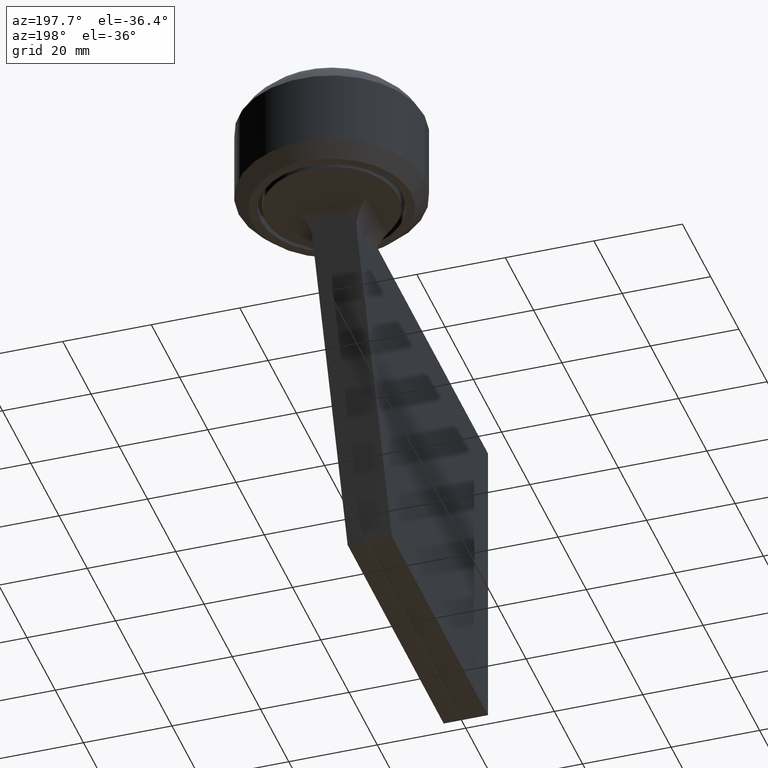
[diagram: clean part render]
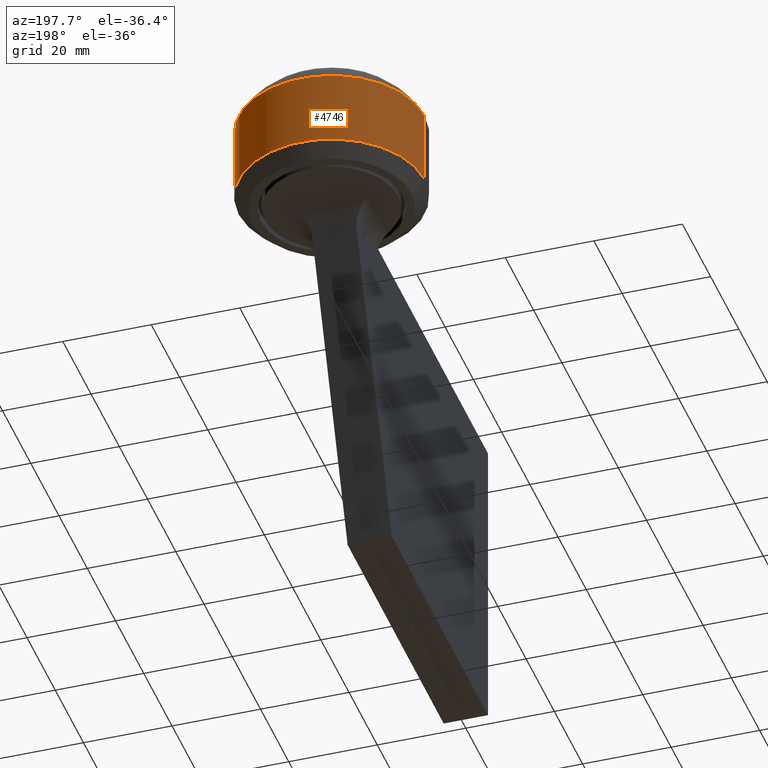
[diagram: same view with one face highlighted and labeled with its STEP entity id]
A machine part, auxiliary view. The second image highlights one B-rep face of the part: STEP entity #4746.
In plain terms, the highlighted cylindrical surface (partial cylindrical patch) has radius 21 mm, axis along (0, 0, 1).
Its self-contained STEP definition (entity closure, byte-faithful):
#400 = DIRECTION ( 'NONE',  ( -0.000000000000000000, -0.000000000000000000, 1.000000000000000000 ) ) ;
#1333 = EDGE_CURVE ( 'NONE', #4441, #6916, #11394, .T. ) ;
#2005 = CARTESIAN_POINT ( 'NONE',  ( 21.00000000000000000, 0.000000000000000000, 0.000000000000000000 ) ) ;
#2401 = CARTESIAN_POINT ( 'NONE',  ( 0.000000000000000000, 0.000000000000000000, -24.99999999999999645 ) ) ;
#2742 = CARTESIAN_POINT ( 'NONE',  ( 21.00000000000000000, 0.000000000000000000, -7.999999999999996447 ) ) ;
#2792 = DIRECTION ( 'NONE',  ( -0.000000000000000000, -0.000000000000000000, 1.000000000000000000 ) ) ;
#3322 = LINE ( 'NONE', #2005, #11841 ) ;
#3905 = AXIS2_PLACEMENT_3D ( 'NONE', #2401, #400, #9899 ) ;
#3998 = FACE_OUTER_BOUND ( 'NONE', #7875, .T. ) ;
#4441 = VERTEX_POINT ( 'NONE', #11408 ) ;
#4746 = ADVANCED_FACE ( 'NONE', ( #3998 ), #5907, .T. ) ;
#5032 = VERTEX_POINT ( 'NONE', #2742 ) ;
#5615 = EDGE_CURVE ( 'NONE', #8401, #5032, #3322, .T. ) ;
#5622 = CARTESIAN_POINT ( 'NONE',  ( 0.000000000000000000, 0.000000000000000000, 0.000000000000000000 ) ) ;
#5742 = DIRECTION ( 'NONE',  ( -0.000000000000000000, -0.000000000000000000, 1.000000000000000000 ) ) ;
#5907 = CYLINDRICAL_SURFACE ( 'NONE', #8435, 21.00000000000000000 ) ;
#6719 = ORIENTED_EDGE ( 'NONE', *, *, #5615, .F. ) ;
#6775 = DIRECTION ( 'NONE',  ( 1.000000000000000000, 0.000000000000000000, 0.000000000000000000 ) ) ;
#6785 = CIRCLE ( 'NONE', #12160, 21.00000000000000000 ) ;
#6916 = VERTEX_POINT ( 'NONE', #8344 ) ;
#7875 = EDGE_LOOP ( 'NONE', ( #10892, #9100, #9593, #6719 ) ) ;
#8135 = VECTOR ( 'NONE', #2792, 1000.000000000000000 ) ;
#8344 = CARTESIAN_POINT ( 'NONE',  ( -21.00000000000000000, 2.571758278209441661E-15, -7.999999999999996447 ) ) ;
#8394 = CARTESIAN_POINT ( 'NONE',  ( -21.00000000000000000, 2.571758278209441661E-15, 0.000000000000000000 ) ) ;
#8401 = VERTEX_POINT ( 'NONE', #8924 ) ;
#8435 = AXIS2_PLACEMENT_3D ( 'NONE', #5622, #12171, #10332 ) ;
#8924 = CARTESIAN_POINT ( 'NONE',  ( 21.00000000000000000, 0.000000000000000000, -24.99999999999999645 ) ) ;
#8933 = EDGE_CURVE ( 'NONE', #8401, #4441, #11220, .T. ) ;
#9100 = ORIENTED_EDGE ( 'NONE', *, *, #1333, .T. ) ;
#9535 = DIRECTION ( 'NONE',  ( -0.000000000000000000, -0.000000000000000000, 1.000000000000000000 ) ) ;
#9593 = ORIENTED_EDGE ( 'NONE', *, *, #11363, .F. ) ;
#9899 = DIRECTION ( 'NONE',  ( 1.000000000000000000, 0.000000000000000000, 0.000000000000000000 ) ) ;
#10332 = DIRECTION ( 'NONE',  ( 1.000000000000000000, 0.000000000000000000, 0.000000000000000000 ) ) ;
#10566 = CARTESIAN_POINT ( 'NONE',  ( 0.000000000000000000, 0.000000000000000000, -7.999999999999996447 ) ) ;
#10892 = ORIENTED_EDGE ( 'NONE', *, *, #8933, .T. ) ;
#11220 = CIRCLE ( 'NONE', #3905, 21.00000000000000000 ) ;
#11363 = EDGE_CURVE ( 'NONE', #5032, #6916, #6785, .T. ) ;
#11394 = LINE ( 'NONE', #8394, #8135 ) ;
#11408 = CARTESIAN_POINT ( 'NONE',  ( -21.00000000000000000, 2.571758278209441661E-15, -24.99999999999999645 ) ) ;
#11841 = VECTOR ( 'NONE', #5742, 1000.000000000000000 ) ;
#12160 = AXIS2_PLACEMENT_3D ( 'NONE', #10566, #9535, #6775 ) ;
#12171 = DIRECTION ( 'NONE',  ( -0.000000000000000000, -0.000000000000000000, 1.000000000000000000 ) ) ;